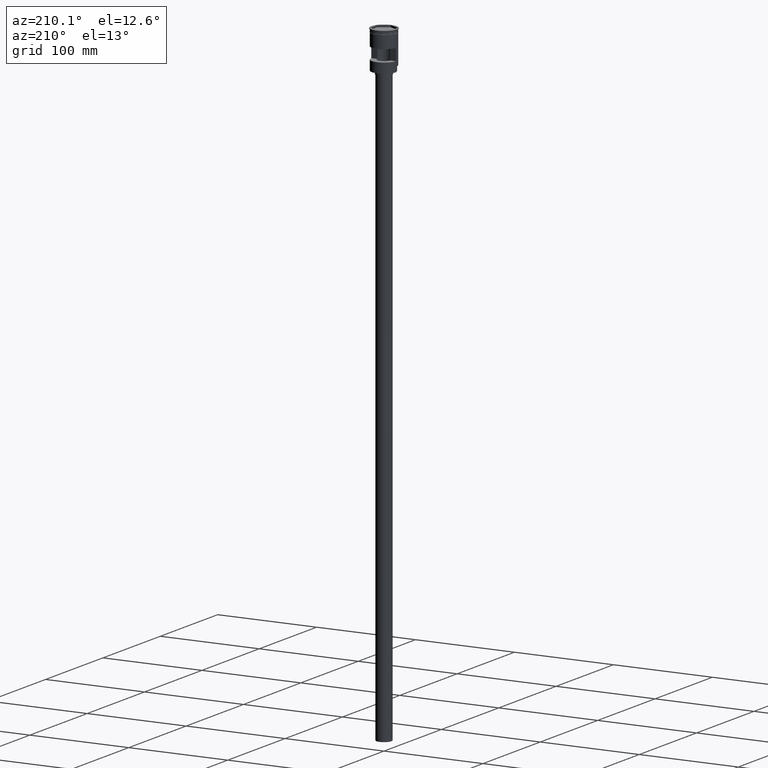
[diagram: clean part render]
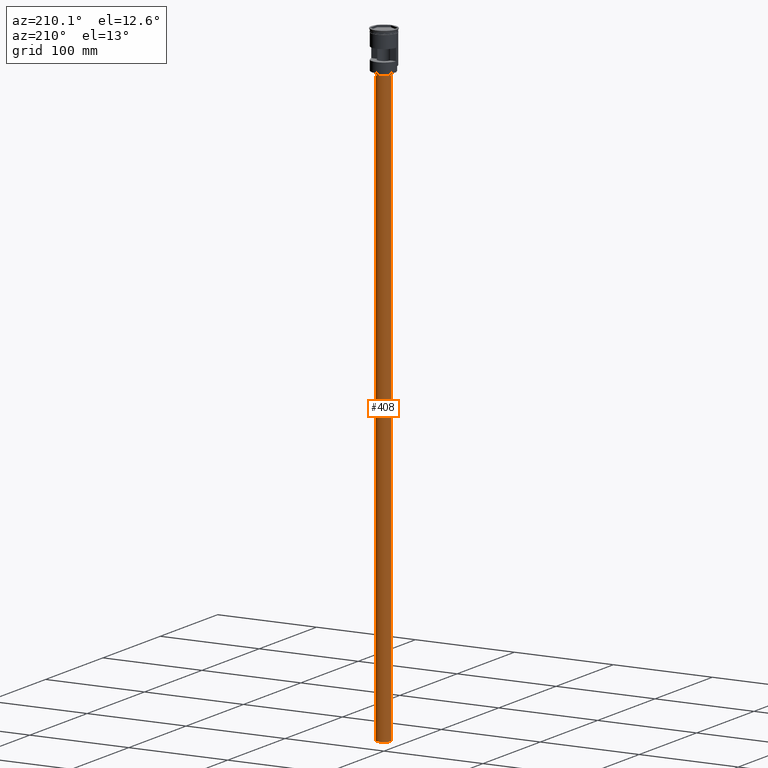
[diagram: same view with one face highlighted and labeled with its STEP entity id]
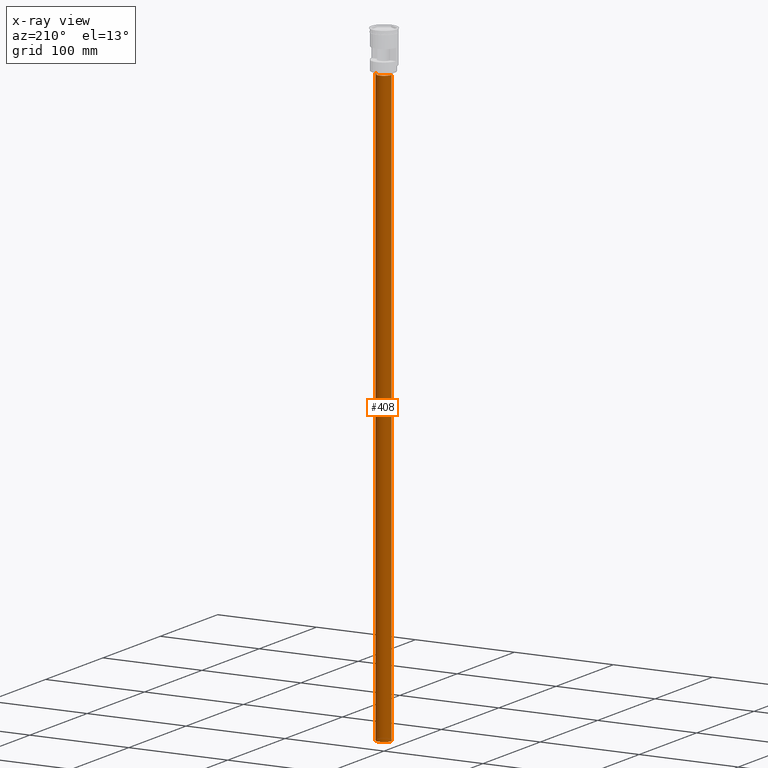
[diagram: x-ray of the same camera — body ghosted, the highlighted face saturated]
A machine part, auxiliary view. The second image highlights one B-rep face of the part: STEP entity #408.
The next image is the same camera in x-ray: the body ghosted, the highlighted face saturated — about 0% of this face is hidden behind the body in this view.
In plain terms, the highlighted cylindrical surface (edge-blend (fillet) strip) has radius 7.5 mm, axis along (-0, -0, 1).
Its self-contained STEP definition (entity closure, byte-faithful):
#28 = LINE ( 'NONE', #632, #1429 ) ;
#34 = AXIS2_PLACEMENT_3D ( 'NONE', #1280, #170, #663 ) ;
#55 = EDGE_CURVE ( 'NONE', #1259, #413, #335, .T. ) ;
#59 = ORIENTED_EDGE ( 'NONE', *, *, #297, .F. ) ;
#75 = CARTESIAN_POINT ( 'NONE',  ( 0.000000000000000000, 0.000000000000000000, -638.5000000000000000 ) ) ;
#170 = DIRECTION ( 'NONE',  ( 0.000000000000000000, 0.000000000000000000, -1.000000000000000000 ) ) ;
#198 = ORIENTED_EDGE ( 'NONE', *, *, #281, .T. ) ;
#281 = EDGE_CURVE ( 'NONE', #1259, #430, #1094, .T. ) ;
#297 = EDGE_CURVE ( 'NONE', #413, #664, #28, .T. ) ;
#311 = AXIS2_PLACEMENT_3D ( 'NONE', #1105, #742, #849 ) ;
#330 = DIRECTION ( 'NONE',  ( -0.000000000000000000, -0.000000000000000000, 1.000000000000000000 ) ) ;
#335 = CIRCLE ( 'NONE', #311, 7.500000000000000000 ) ;
#338 = CIRCLE ( 'NONE', #34, 7.500000000000000000 ) ;
#408 = ADVANCED_FACE ( 'NONE', ( #1591 ), #830, .T. ) ;
#413 = VERTEX_POINT ( 'NONE', #563 ) ;
#430 = VERTEX_POINT ( 'NONE', #607 ) ;
#543 = AXIS2_PLACEMENT_3D ( 'NONE', #75, #330, #1206 ) ;
#546 = EDGE_LOOP ( 'NONE', ( #635, #198, #1375, #59 ) ) ;
#563 = CARTESIAN_POINT ( 'NONE',  ( 7.500000000000000000, 0.000000000000000000, -638.5000000000000000 ) ) ;
#607 = CARTESIAN_POINT ( 'NONE',  ( -7.500000000000000000, 9.184850993605147944E-16, -41.50000000000000000 ) ) ;
#632 = CARTESIAN_POINT ( 'NONE',  ( 7.500000000000000000, 0.000000000000000000, -638.5000000000000000 ) ) ;
#635 = ORIENTED_EDGE ( 'NONE', *, *, #55, .F. ) ;
#641 = DIRECTION ( 'NONE',  ( -0.000000000000000000, -0.000000000000000000, 1.000000000000000000 ) ) ;
#663 = DIRECTION ( 'NONE',  ( -1.000000000000000000, 0.000000000000000000, 0.000000000000000000 ) ) ;
#664 = VERTEX_POINT ( 'NONE', #1523 ) ;
#672 = EDGE_CURVE ( 'NONE', #430, #664, #338, .T. ) ;
#742 = DIRECTION ( 'NONE',  ( 0.000000000000000000, 0.000000000000000000, -1.000000000000000000 ) ) ;
#830 = CYLINDRICAL_SURFACE ( 'NONE', #543, 7.500000000000000000 ) ;
#849 = DIRECTION ( 'NONE',  ( -1.000000000000000000, 0.000000000000000000, 0.000000000000000000 ) ) ;
#876 = DIRECTION ( 'NONE',  ( -0.000000000000000000, -0.000000000000000000, 1.000000000000000000 ) ) ;
#1005 = CARTESIAN_POINT ( 'NONE',  ( -7.500000000000000000, 9.184850993605147944E-16, -638.5000000000000000 ) ) ;
#1094 = LINE ( 'NONE', #1005, #1560 ) ;
#1105 = CARTESIAN_POINT ( 'NONE',  ( 0.000000000000000000, 0.000000000000000000, -638.5000000000000000 ) ) ;
#1206 = DIRECTION ( 'NONE',  ( 1.000000000000000000, 0.000000000000000000, 0.000000000000000000 ) ) ;
#1230 = CARTESIAN_POINT ( 'NONE',  ( -7.500000000000000000, 9.184850993605147944E-16, -638.5000000000000000 ) ) ;
#1259 = VERTEX_POINT ( 'NONE', #1230 ) ;
#1280 = CARTESIAN_POINT ( 'NONE',  ( 0.000000000000000000, 0.000000000000000000, -41.50000000000000000 ) ) ;
#1375 = ORIENTED_EDGE ( 'NONE', *, *, #672, .T. ) ;
#1429 = VECTOR ( 'NONE', #641, 1000.000000000000000 ) ;
#1523 = CARTESIAN_POINT ( 'NONE',  ( 7.500000000000000000, 0.000000000000000000, -41.50000000000000000 ) ) ;
#1560 = VECTOR ( 'NONE', #876, 1000.000000000000000 ) ;
#1591 = FACE_OUTER_BOUND ( 'NONE', #546, .T. ) ;